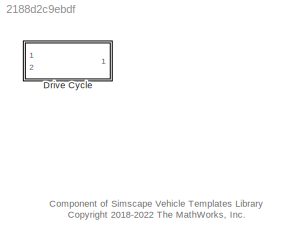
MODEL slx_2188d2c9ebdf
KIND library
CONFIG AbsTol = auto
CONFIG EnableMultiTasking = off
CONFIG FixedStep = auto
CONFIG MaxStep = auto
CONFIG MinStep = auto
CONFIG RelTol = 1e-3
CONFIG SampleTimeConstraint = Unconstrained
CONFIG SolverName = VariableStepAuto
CONFIG StartTime = 0.0
CONFIG StopTime = 10.0
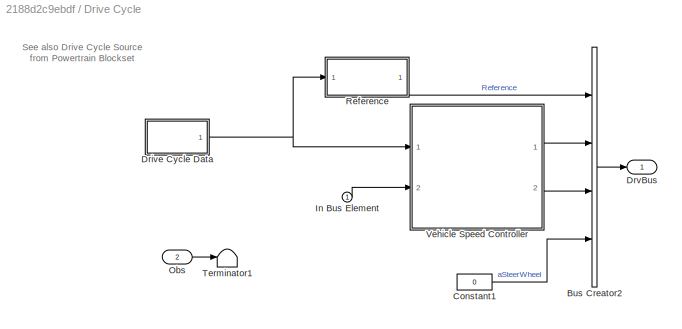
BLOCK [SubSystem] Drive Cycle
  Ports = [2, 1]
  RequestExecContextInheritance = off
  VariantControl = Drive_Cycle
BLOCK [BusCreator] Drive Cycle/Bus Creator2
  DisplayOption = bar
  InheritFromInputs = on
  Inputs = 4
  Ports = [4, 1]
BLOCK [Constant] Drive Cycle/Constant1
  Value = 0
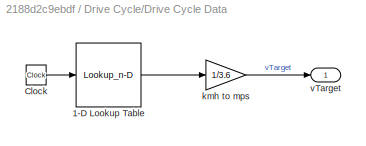
BLOCK [SubSystem] Drive Cycle/Drive Cycle Data
  Ports = [0, 1]
  RequestExecContextInheritance = off
BLOCK [Lookup_n-D] Drive Cycle/Drive Cycle Data/1-D Lookup Table
  BreakpointsForDimension1 = Drive_Cycle_Time
  InputPortMap = u0
  InternalRulePriority = Speed
  InterpMethod = Cubic spline
  NumberOfTableDimensions = 1
  Ports = [1, 1]
  RndMeth = Simplest
  Table = Drive_Cycle_Speed
BLOCK [Clock] Drive Cycle/Drive Cycle Data/Clock
BLOCK [Gain] Drive Cycle/Drive Cycle Data/kmh to mps 
  Gain = 1/3.6
BLOCK [Outport] Drive Cycle/Drive Cycle Data/vTarget
  VectorParamsAs1DForOutWhenUnconnected = off
BLOCK [Outport] Drive Cycle/DrvBus
  VectorParamsAs1DForOutWhenUnconnected = off
BLOCK [Inport] Drive Cycle/In Bus Element
BLOCK [Inport] Drive Cycle/Obs
  Port = 2
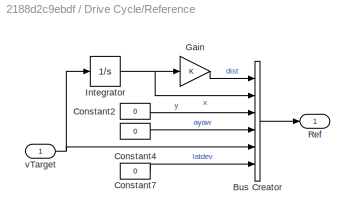
BLOCK [SubSystem] Drive Cycle/Reference
  Ports = [1, 1]
  RequestExecContextInheritance = off
BLOCK [BusCreator] Drive Cycle/Reference/Bus Creator
  DisplayOption = bar
  InheritFromInputs = on
  Inputs = 6
  Ports = [6, 1]
BLOCK [Constant] Drive Cycle/Reference/Constant2
  Value = 0
BLOCK [Constant] Drive Cycle/Reference/Constant4
  Value = 0
BLOCK [Constant] Drive Cycle/Reference/Constant7
  Value = 0
BLOCK [Gain] Drive Cycle/Reference/Gain
BLOCK [Integrator] Drive Cycle/Reference/Integrator
  Ports = [1, 1]
BLOCK [Outport] Drive Cycle/Reference/Ref
  VectorParamsAs1DForOutWhenUnconnected = off
BLOCK [Inport] Drive Cycle/Reference/vTarget
BLOCK [Terminator] Drive Cycle/Terminator1
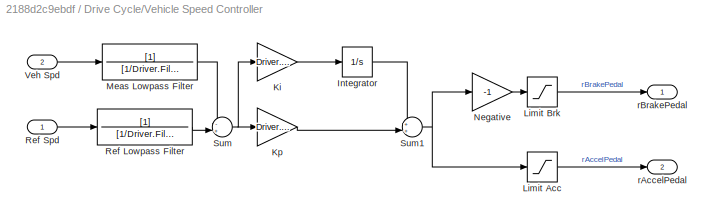
BLOCK [SubSystem] Drive Cycle/Vehicle Speed Controller
  Ports = [2, 2]
  RequestExecContextInheritance = off
BLOCK [Integrator] Drive Cycle/Vehicle Speed Controller/Integrator
  LowerSaturationLimit = -1
  Ports = [1, 1]
  UpperSaturationLimit = 1
  ZeroCross = off
BLOCK [Gain] Drive Cycle/Vehicle Speed Controller/Ki
  Gain = Driver.Long.Ki.Value/2/2
BLOCK [Gain] Drive Cycle/Vehicle Speed Controller/Kp
  Gain = Driver.Long.Kp.Value/2
BLOCK [Saturate] Drive Cycle/Vehicle Speed Controller/Limit Acc
  LowerLimit = 0
  UpperLimit = 1
  ZeroCross = off
BLOCK [Saturate] Drive Cycle/Vehicle Speed Controller/Limit Brk
  LowerLimit = 0
  UpperLimit = 1
  ZeroCross = off
BLOCK [TransferFcn] Drive Cycle/Vehicle Speed Controller/Meas Lowpass Filter
  Denominator = [1/Driver.Filter.Measured.Value 1]
BLOCK [Gain] Drive Cycle/Vehicle Speed Controller/Negative
  Gain = -1
BLOCK [TransferFcn] Drive Cycle/Vehicle Speed Controller/Ref Lowpass Filter
  Denominator = [1/Driver.Filter.Reference.Value 1]
BLOCK [Inport] Drive Cycle/Vehicle Speed Controller/Ref Spd
BLOCK [Sum] Drive Cycle/Vehicle Speed Controller/Sum
  Inputs = -+|
  Ports = [2, 1]
BLOCK [Sum] Drive Cycle/Vehicle Speed Controller/Sum1
  Inputs = ++|
  Ports = [2, 1]
BLOCK [Inport] Drive Cycle/Vehicle Speed Controller/Veh Spd
  Port = 2
BLOCK [Outport] Drive Cycle/Vehicle Speed Controller/rAccelPedal
  Port = 2
  VectorParamsAs1DForOutWhenUnconnected = off
BLOCK [Outport] Drive Cycle/Vehicle Speed Controller/rBrakePedal
  VectorParamsAs1DForOutWhenUnconnected = off
ANNOTATION (root): Component of Simscape Vehicle Templates Library <copyright redacted>
ANNOTATION Drive Cycle: See also Drive Cycle Source from Powertrain Blockset
LINE Drive Cycle/Bus Creator2:1 -> Drive Cycle/DrvBus:1
LINE Drive Cycle/Constant1:1 -> Drive Cycle/Bus Creator2:4
NET Drive Cycle/Drive Cycle Data:1 -> Drive Cycle/Reference:1, Drive Cycle/Vehicle Speed Controller:1
LINE Drive Cycle/In Bus Element:1 -> Drive Cycle/Vehicle Speed Controller:2
LINE Drive Cycle/Obs:1 -> Drive Cycle/Terminator1:1
LINE Drive Cycle/Reference/Bus Creator:1 -> Drive Cycle/Reference/Ref:1
LINE Drive Cycle/Reference/Constant2:1 -> Drive Cycle/Reference/Bus Creator:3
LINE Drive Cycle/Reference/Constant4:1 -> Drive Cycle/Reference/Bus Creator:4
LINE Drive Cycle/Reference/Constant7:1 -> Drive Cycle/Reference/Bus Creator:6
LINE Drive Cycle/Reference/Gain:1 -> Drive Cycle/Reference/Bus Creator:1
NET Drive Cycle/Reference/Integrator:1 -> Drive Cycle/Reference/Bus Creator:2, Drive Cycle/Reference/Gain:1
NET Drive Cycle/Reference/vTarget:1 -> Drive Cycle/Reference/Bus Creator:5, Drive Cycle/Reference/Integrator:1
LINE Drive Cycle/Reference:1 -> Drive Cycle/Bus Creator2:1
LINE Drive Cycle/Vehicle Speed Controller/Integrator:1 -> Drive Cycle/Vehicle Speed Controller/Sum1:1
LINE Drive Cycle/Vehicle Speed Controller/Ki:1 -> Drive Cycle/Vehicle Speed Controller/Integrator:1
LINE Drive Cycle/Vehicle Speed Controller/Kp:1 -> Drive Cycle/Vehicle Speed Controller/Sum1:2
LINE Drive Cycle/Vehicle Speed Controller/Limit Acc:1 -> Drive Cycle/Vehicle Speed Controller/rAccelPedal:1
LINE Drive Cycle/Vehicle Speed Controller/Limit Brk:1 -> Drive Cycle/Vehicle Speed Controller/rBrakePedal:1
LINE Drive Cycle/Vehicle Speed Controller/Meas Lowpass Filter:1 -> Drive Cycle/Vehicle Speed Controller/Sum:1
LINE Drive Cycle/Vehicle Speed Controller/Negative:1 -> Drive Cycle/Vehicle Speed Controller/Limit Brk:1
LINE Drive Cycle/Vehicle Speed Controller/Ref Lowpass Filter:1 -> Drive Cycle/Vehicle Speed Controller/Sum:2
LINE Drive Cycle/Vehicle Speed Controller/Ref Spd:1 -> Drive Cycle/Vehicle Speed Controller/Ref Lowpass Filter:1
NET Drive Cycle/Vehicle Speed Controller/Sum1:1 -> Drive Cycle/Vehicle Speed Controller/Limit Acc:1, Drive Cycle/Vehicle Speed Controller/Negative:1
NET Drive Cycle/Vehicle Speed Controller/Sum:1 -> Drive Cycle/Vehicle Speed Controller/Ki:1, Drive Cycle/Vehicle Speed Controller/Kp:1
LINE Drive Cycle/Vehicle Speed Controller/Veh Spd:1 -> Drive Cycle/Vehicle Speed Controller/Meas Lowpass Filter:1
LINE Drive Cycle/Vehicle Speed Controller:1 -> Drive Cycle/Bus Creator2:2
LINE Drive Cycle/Vehicle Speed Controller:2 -> Drive Cycle/Bus Creator2:3
note: NET lines group one-source signal fan-out (src -> all destinations, sorted); 1:1 wires keep LINE
